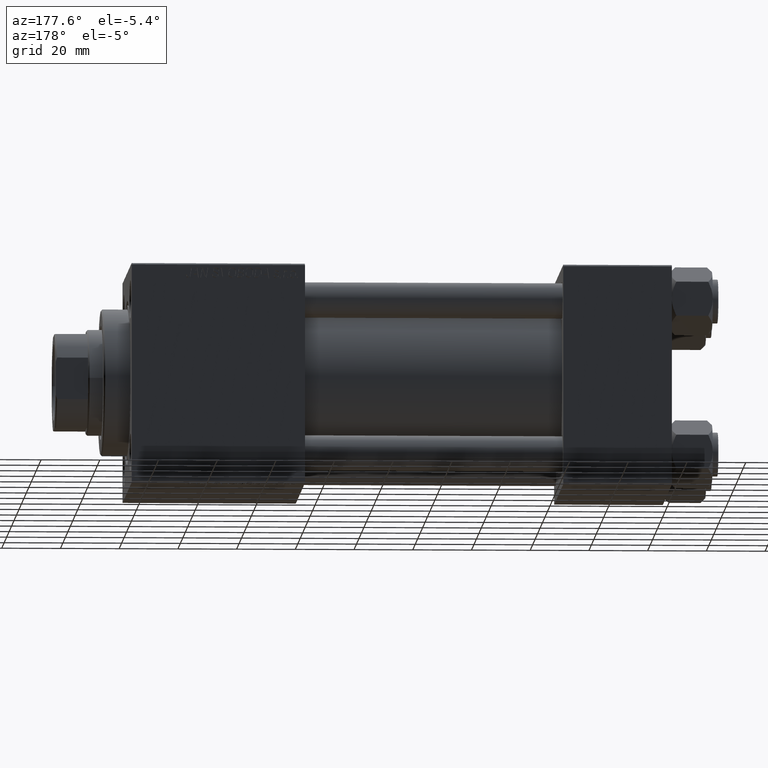
[diagram: clean part render]
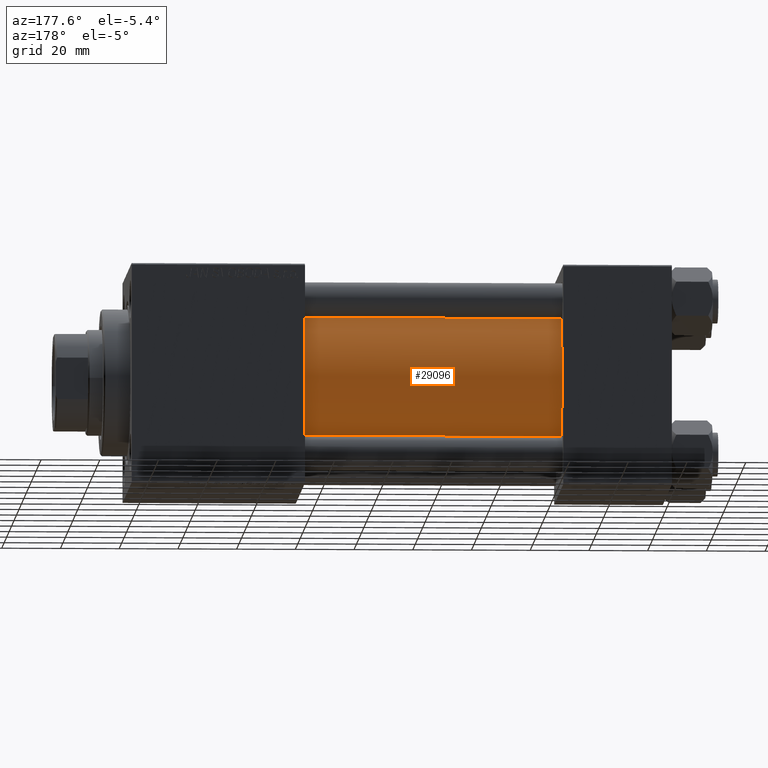
[diagram: same view with one face highlighted and labeled with its STEP entity id]
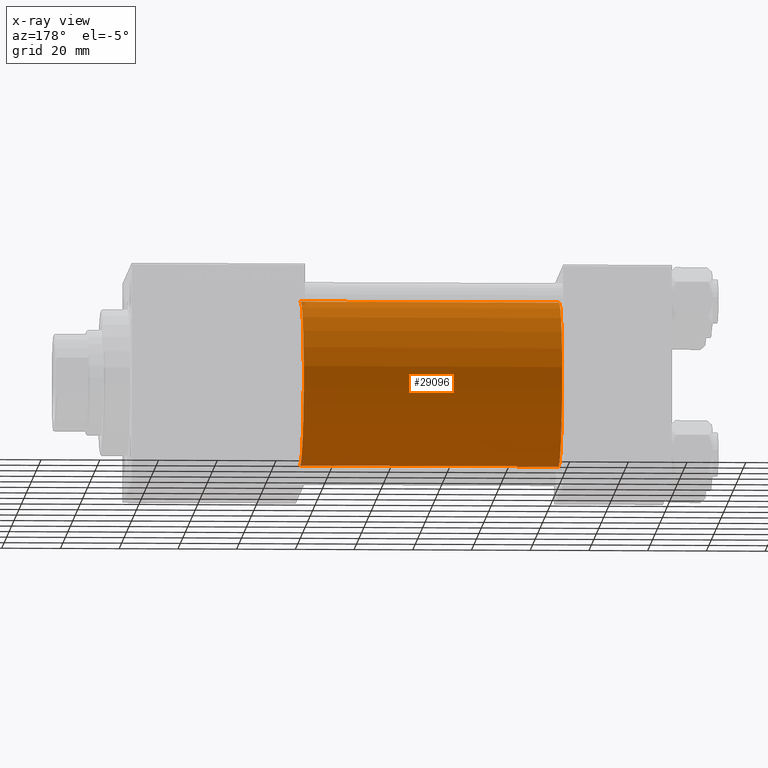
[diagram: x-ray of the same camera — body ghosted, the highlighted face saturated]
A machine part, auxiliary view. The second image highlights one B-rep face of the part: STEP entity #29096.
The next image is the same camera in x-ray: the body ghosted, the highlighted face saturated — about 2% of this face is hidden behind the body in this view.
In plain terms, the highlighted cylindrical surface (partial cylindrical patch) has radius 28 mm, axis along (-1, -0, -0).
Its self-contained STEP definition (entity closure, byte-faithful):
#1132 = VERTEX_POINT ( 'NONE', #36501 ) ;
#1168 = AXIS2_PLACEMENT_3D ( 'NONE', #42472, #7589, #3728 ) ;
#3728 = DIRECTION ( 'NONE',  ( 0.000000000000000000, 0.000000000000000000, 1.000000000000000000 ) ) ;
#5793 = EDGE_CURVE ( 'NONE', #23346, #1132, #49526, .T. ) ;
#6374 = CARTESIAN_POINT ( 'NONE',  ( 37.00000000000000711, 8.269258236473784371E-16, -28.00000000000000000 ) ) ;
#7589 = DIRECTION ( 'NONE',  ( 1.000000000000000000, -0.000000000000000000, 0.000000000000000000 ) ) ;
#8369 = ORIENTED_EDGE ( 'NONE', *, *, #37185, .F. ) ;
#11625 = CARTESIAN_POINT ( 'NONE',  ( 125.0000000000000000, 8.269258236473784371E-16, -28.00000000000000000 ) ) ;
#14413 = CARTESIAN_POINT ( 'NONE',  ( 125.0000000000000000, -2.602085213965210642E-15, 0.000000000000000000 ) ) ;
#14661 = FACE_OUTER_BOUND ( 'NONE', #46554, .T. ) ;
#15864 = ORIENTED_EDGE ( 'NONE', *, *, #36119, .T. ) ;
#20804 = CARTESIAN_POINT ( 'NONE',  ( 125.0000000000000000, -2.602085213965210642E-15, 28.00000000000000000 ) ) ;
#22735 = DIRECTION ( 'NONE',  ( -1.000000000000000000, -0.000000000000000000, -0.000000000000000000 ) ) ;
#23232 = AXIS2_PLACEMENT_3D ( 'NONE', #14413, #49329, #45250 ) ;
#23333 = CARTESIAN_POINT ( 'NONE',  ( 125.0000000000000000, 8.269258236473784371E-16, -28.00000000000000000 ) ) ;
#23346 = VERTEX_POINT ( 'NONE', #20804 ) ;
#23677 = VERTEX_POINT ( 'NONE', #11625 ) ;
#23957 = CIRCLE ( 'NONE', #24795, 28.00000000000000000 ) ;
#24759 = CIRCLE ( 'NONE', #1168, 28.00000000000000000 ) ;
#24795 = AXIS2_PLACEMENT_3D ( 'NONE', #35248, #27367, #39073 ) ;
#27367 = DIRECTION ( 'NONE',  ( 1.000000000000000000, 0.000000000000000000, 0.000000000000000000 ) ) ;
#28321 = VECTOR ( 'NONE', #42995, 1000.000000000000000 ) ;
#29096 = ADVANCED_FACE ( 'NONE', ( #14661 ), #41419, .T. ) ;
#33604 = ORIENTED_EDGE ( 'NONE', *, *, #48832, .T. ) ;
#34959 = CARTESIAN_POINT ( 'NONE',  ( 125.0000000000000000, -2.602085213965210642E-15, 28.00000000000000000 ) ) ;
#35063 = LINE ( 'NONE', #23333, #28321 ) ;
#35248 = CARTESIAN_POINT ( 'NONE',  ( 125.0000000000000000, -2.602085213965210642E-15, 0.000000000000000000 ) ) ;
#36119 = EDGE_CURVE ( 'NONE', #38267, #1132, #24759, .T. ) ;
#36501 = CARTESIAN_POINT ( 'NONE',  ( 37.00000000000000711, -2.602085213965210642E-15, 28.00000000000000000 ) ) ;
#37185 = EDGE_CURVE ( 'NONE', #23677, #23346, #23957, .T. ) ;
#37725 = ORIENTED_EDGE ( 'NONE', *, *, #5793, .F. ) ;
#38267 = VERTEX_POINT ( 'NONE', #6374 ) ;
#39073 = DIRECTION ( 'NONE',  ( 0.000000000000000000, 0.000000000000000000, -1.000000000000000000 ) ) ;
#41305 = VECTOR ( 'NONE', #22735, 1000.000000000000000 ) ;
#41419 = CYLINDRICAL_SURFACE ( 'NONE', #23232, 28.00000000000000000 ) ;
#42472 = CARTESIAN_POINT ( 'NONE',  ( 37.00000000000000711, -2.602085213965210642E-15, 0.000000000000000000 ) ) ;
#42995 = DIRECTION ( 'NONE',  ( -1.000000000000000000, -0.000000000000000000, -0.000000000000000000 ) ) ;
#45250 = DIRECTION ( 'NONE',  ( 0.000000000000000000, 0.000000000000000000, 1.000000000000000000 ) ) ;
#46554 = EDGE_LOOP ( 'NONE', ( #8369, #33604, #15864, #37725 ) ) ;
#48832 = EDGE_CURVE ( 'NONE', #23677, #38267, #35063, .T. ) ;
#49329 = DIRECTION ( 'NONE',  ( -1.000000000000000000, -0.000000000000000000, -0.000000000000000000 ) ) ;
#49526 = LINE ( 'NONE', #34959, #41305 ) ;